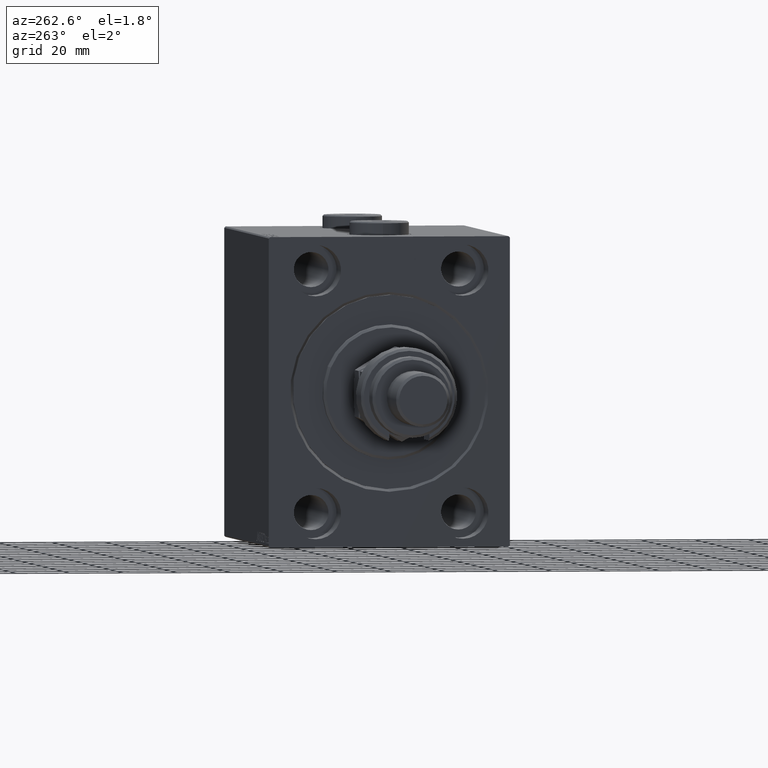
[diagram: clean part render]
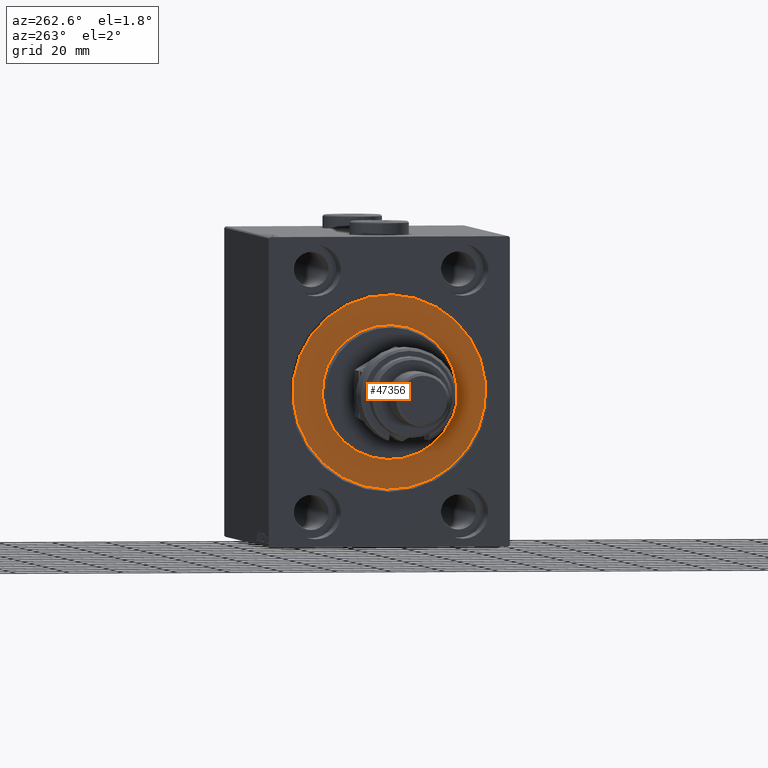
[diagram: same view with one face highlighted and labeled with its STEP entity id]
A machine part, auxiliary view. The second image highlights one B-rep face of the part: STEP entity #47356.
In plain terms, the highlighted planar face has unit normal (1, 0, -0).
Its self-contained STEP definition (entity closure, byte-faithful):
#332 = AXIS2_PLACEMENT_3D ( 'NONE', #34486, #5269, #45451 ) ;
#2021 = ORIENTED_EDGE ( 'NONE', *, *, #17449, .F. ) ;
#2903 = CARTESIAN_POINT ( 'NONE',  ( 0.000000000000000000, 0.000000000000000000, 25.00000000000000000 ) ) ;
#3201 = CIRCLE ( 'NONE', #19535, 25.00000000000000000 ) ;
#4795 = FACE_OUTER_BOUND ( 'NONE', #43626, .T. ) ;
#5269 = DIRECTION ( 'NONE',  ( -1.000000000000000000, 0.000000000000000000, 0.000000000000000000 ) ) ;
#5418 = VERTEX_POINT ( 'NONE', #2903 ) ;
#6396 = CARTESIAN_POINT ( 'NONE',  ( 0.000000000000000000, 0.000000000000000000, 0.000000000000000000 ) ) ;
#7322 = DIRECTION ( 'NONE',  ( -1.000000000000000000, 0.000000000000000000, 0.000000000000000000 ) ) ;
#8206 = FACE_BOUND ( 'NONE', #33555, .T. ) ;
#11785 = DIRECTION ( 'NONE',  ( 0.000000000000000000, 0.000000000000000000, -1.000000000000000000 ) ) ;
#11813 = CIRCLE ( 'NONE', #39040, 36.00000000000000000 ) ;
#12604 = EDGE_CURVE ( 'NONE', #14121, #5418, #3201, .T. ) ;
#14121 = VERTEX_POINT ( 'NONE', #30113 ) ;
#15135 = AXIS2_PLACEMENT_3D ( 'NONE', #19110, #15924, #11785 ) ;
#15924 = DIRECTION ( 'NONE',  ( 1.000000000000000000, -0.000000000000000000, 0.000000000000000000 ) ) ;
#15983 = DIRECTION ( 'NONE',  ( -1.000000000000000000, 0.000000000000000000, 0.000000000000000000 ) ) ;
#17449 = EDGE_CURVE ( 'NONE', #46736, #21638, #42965, .T. ) ;
#17596 = DIRECTION ( 'NONE',  ( 0.000000000000000000, 0.000000000000000000, -1.000000000000000000 ) ) ;
#19110 = CARTESIAN_POINT ( 'NONE',  ( 0.000000000000000000, 0.000000000000000000, 0.000000000000000000 ) ) ;
#19535 = AXIS2_PLACEMENT_3D ( 'NONE', #6396, #46811, #17596 ) ;
#21638 = VERTEX_POINT ( 'NONE', #30012 ) ;
#22407 = DIRECTION ( 'NONE',  ( 0.000000000000000000, 0.000000000000000000, 1.000000000000000000 ) ) ;
#23616 = ORIENTED_EDGE ( 'NONE', *, *, #44975, .F. ) ;
#24889 = ORIENTED_EDGE ( 'NONE', *, *, #12604, .F. ) ;
#26466 = PLANE ( 'NONE',  #332 ) ;
#29843 = CARTESIAN_POINT ( 'NONE',  ( 0.000000000000000000, 4.408728476930470856E-15, 36.00000000000000000 ) ) ;
#29893 = CIRCLE ( 'NONE', #15135, 25.00000000000000000 ) ;
#30012 = CARTESIAN_POINT ( 'NONE',  ( 0.000000000000000000, 0.000000000000000000, -36.00000000000000000 ) ) ;
#30113 = CARTESIAN_POINT ( 'NONE',  ( 0.000000000000000000, 3.061616997868383043E-15, -25.00000000000000000 ) ) ;
#31768 = CARTESIAN_POINT ( 'NONE',  ( 0.000000000000000000, 0.000000000000000000, 0.000000000000000000 ) ) ;
#33555 = EDGE_LOOP ( 'NONE', ( #23616, #24889 ) ) ;
#34486 = CARTESIAN_POINT ( 'NONE',  ( 0.000000000000000000, 0.000000000000000000, 0.000000000000000000 ) ) ;
#34637 = ORIENTED_EDGE ( 'NONE', *, *, #37509, .F. ) ;
#37506 = CARTESIAN_POINT ( 'NONE',  ( 0.000000000000000000, 0.000000000000000000, 0.000000000000000000 ) ) ;
#37509 = EDGE_CURVE ( 'NONE', #21638, #46736, #11813, .T. ) ;
#39040 = AXIS2_PLACEMENT_3D ( 'NONE', #31768, #15983, #45920 ) ;
#42965 = CIRCLE ( 'NONE', #43732, 36.00000000000000000 ) ;
#43626 = EDGE_LOOP ( 'NONE', ( #34637, #2021 ) ) ;
#43732 = AXIS2_PLACEMENT_3D ( 'NONE', #37506, #7322, #22407 ) ;
#44975 = EDGE_CURVE ( 'NONE', #5418, #14121, #29893, .T. ) ;
#45451 = DIRECTION ( 'NONE',  ( 0.000000000000000000, 0.000000000000000000, 1.000000000000000000 ) ) ;
#45920 = DIRECTION ( 'NONE',  ( 0.000000000000000000, 0.000000000000000000, 1.000000000000000000 ) ) ;
#46736 = VERTEX_POINT ( 'NONE', #29843 ) ;
#46811 = DIRECTION ( 'NONE',  ( 1.000000000000000000, -0.000000000000000000, 0.000000000000000000 ) ) ;
#47356 = ADVANCED_FACE ( 'NONE', ( #8206, #4795 ), #26466, .F. ) ;